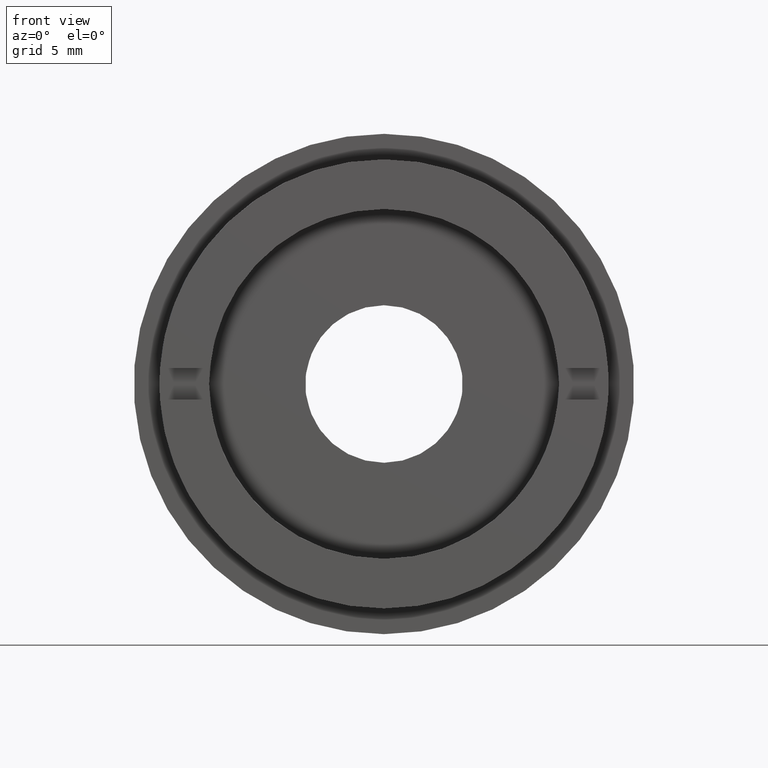
[diagram: clean part render]
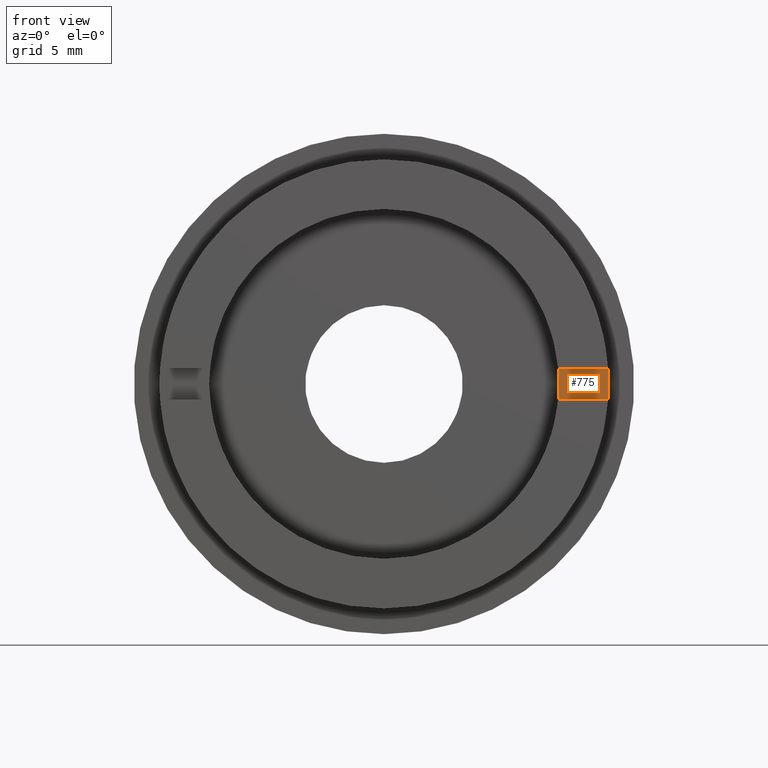
[diagram: same view with one face highlighted and labeled with its STEP entity id]
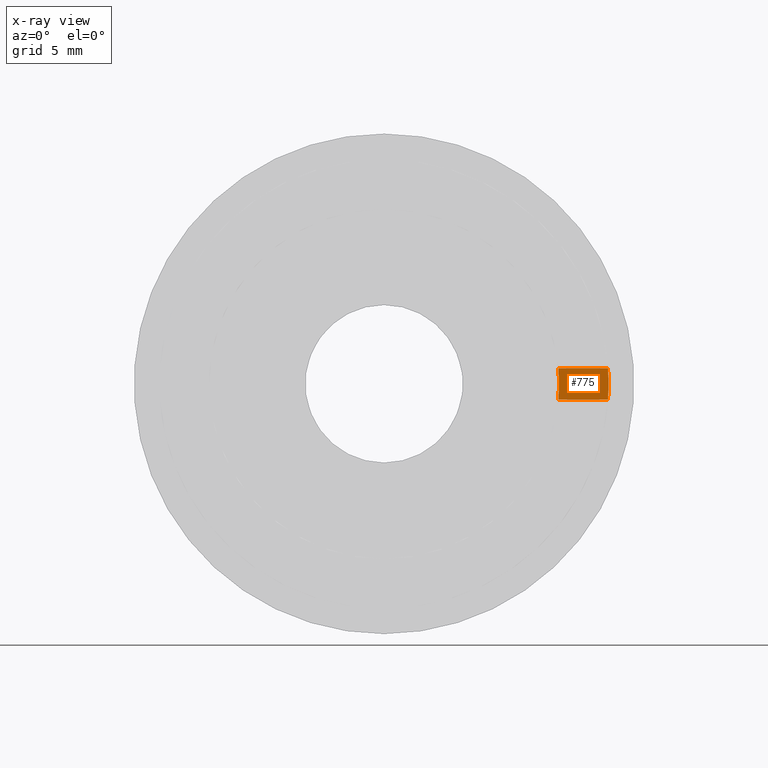
[diagram: x-ray of the same camera — body ghosted, the highlighted face saturated]
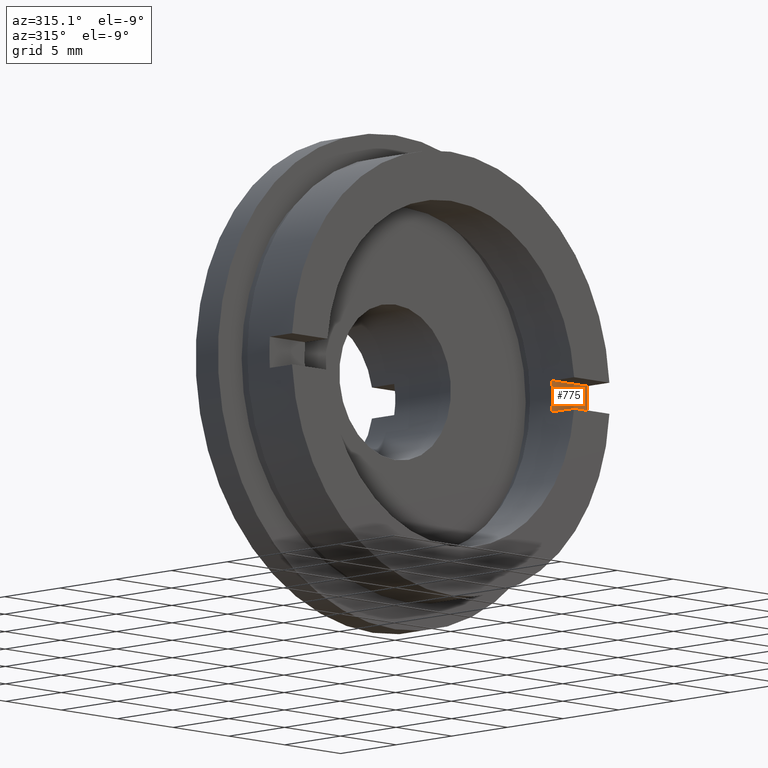
[diagram: same view with one face highlighted and labeled with its STEP entity id]
A machine part, front view. The second image highlights one B-rep face of the part: STEP entity #775.
The next image is the same camera in x-ray: the body ghosted, the highlighted face saturated — about 0% of this face is hidden behind the body in this view.
A second angle (auxiliary view) of the same face is appended — the face is thin or edge-on in the first view.
In plain terms, the highlighted planar face has unit normal (0, 1, 0).
Its self-contained STEP definition (entity closure, byte-faithful):
#45 = EDGE_LOOP ( 'NONE', ( #308, #335, #609, #1019 ) ) ;
#48 = DIRECTION ( 'NONE',  ( -0.0000000000000000000, -1.000000000000000000, -0.0000000000000000000 ) ) ;
#51 = EDGE_CURVE ( 'NONE', #1171, #260, #351, .T. ) ;
#81 = CARTESIAN_POINT ( 'NONE',  ( -39.50000000000002100, 2.000000000000000000, 1.000000000000000200 ) ) ;
#132 = DIRECTION ( 'NONE',  ( 0.0000000000000000000, 1.000000000000000000, 0.0000000000000000000 ) ) ;
#174 = DIRECTION ( 'NONE',  ( 0.0000000000000000000, -0.0000000000000000000, 1.000000000000000000 ) ) ;
#184 = CARTESIAN_POINT ( 'NONE',  ( 0.0000000000000000000, 1.999999999999998200, 0.0000000000000000000 ) ) ;
#212 = PLANE ( 'NONE',  #1012 ) ;
#223 = CARTESIAN_POINT ( 'NONE',  ( -39.50000000000002100, 2.000000000000000000, 1.000000000000000200 ) ) ;
#260 = VERTEX_POINT ( 'NONE', #605 ) ;
#264 = DIRECTION ( 'NONE',  ( -8.881784197001252300E-016, 0.0000000000000000000, 1.000000000000000000 ) ) ;
#278 = DIRECTION ( 'NONE',  ( 1.000000000000000000, -0.0000000000000000000, -0.0000000000000000000 ) ) ;
#308 = ORIENTED_EDGE ( 'NONE', *, *, #51, .T. ) ;
#335 = ORIENTED_EDGE ( 'NONE', *, *, #649, .F. ) ;
#351 = CIRCLE ( 'NONE', #1082, 14.24999999999999600 ) ;
#421 = VERTEX_POINT ( 'NONE', #989 ) ;
#492 = CARTESIAN_POINT ( 'NONE',  ( 11.05486318323297500, 1.999999999999998200, 1.000000000000000200 ) ) ;
#502 = CIRCLE ( 'NONE', #764, 11.09999999999999800 ) ;
#598 = CARTESIAN_POINT ( 'NONE',  ( 0.0000000000000000000, 1.999999999999998200, 0.0000000000000000000 ) ) ;
#605 = CARTESIAN_POINT ( 'NONE',  ( 14.21486897582949800, 1.999999999999998200, 1.000000000000000200 ) ) ;
#609 = ORIENTED_EDGE ( 'NONE', *, *, #1148, .T. ) ;
#616 = DIRECTION ( 'NONE',  ( 0.0000000000000000000, 1.000000000000000000, 0.0000000000000000000 ) ) ;
#634 = EDGE_CURVE ( 'NONE', #421, #1171, #964, .T. ) ;
#649 = EDGE_CURVE ( 'NONE', #808, #260, #922, .T. ) ;
#651 = FACE_OUTER_BOUND ( 'NONE', #45, .T. ) ;
#681 = DIRECTION ( 'NONE',  ( 1.000000000000000000, -0.0000000000000000000, -0.0000000000000000000 ) ) ;
#700 = CARTESIAN_POINT ( 'NONE',  ( 14.21486897582949300, 2.000000000000000000, -0.9999999999999995600 ) ) ;
#752 = VECTOR ( 'NONE', #278, 1000.000000000000000 ) ;
#764 = AXIS2_PLACEMENT_3D ( 'NONE', #184, #616, #806 ) ;
#775 = ADVANCED_FACE ( 'NONE', ( #651 ), #212, .F. ) ;
#806 = DIRECTION ( 'NONE',  ( 0.0000000000000000000, 0.0000000000000000000, 1.000000000000000000 ) ) ;
#808 = VERTEX_POINT ( 'NONE', #492 ) ;
#879 = VECTOR ( 'NONE', #681, 1000.000000000000000 ) ;
#922 = LINE ( 'NONE', #81, #752 ) ;
#964 = LINE ( 'NONE', #1058, #879 ) ;
#989 = CARTESIAN_POINT ( 'NONE',  ( 11.05486318323297300, 1.999999999999998200, -0.9999999999999943400 ) ) ;
#1012 = AXIS2_PLACEMENT_3D ( 'NONE', #223, #132, #174 ) ;
#1019 = ORIENTED_EDGE ( 'NONE', *, *, #634, .T. ) ;
#1058 = CARTESIAN_POINT ( 'NONE',  ( -39.50000000000002100, 2.000000000000000000, -0.9999999999999995600 ) ) ;
#1082 = AXIS2_PLACEMENT_3D ( 'NONE', #598, #48, #264 ) ;
#1148 = EDGE_CURVE ( 'NONE', #808, #421, #502, .T. ) ;
#1171 = VERTEX_POINT ( 'NONE', #700 ) ;